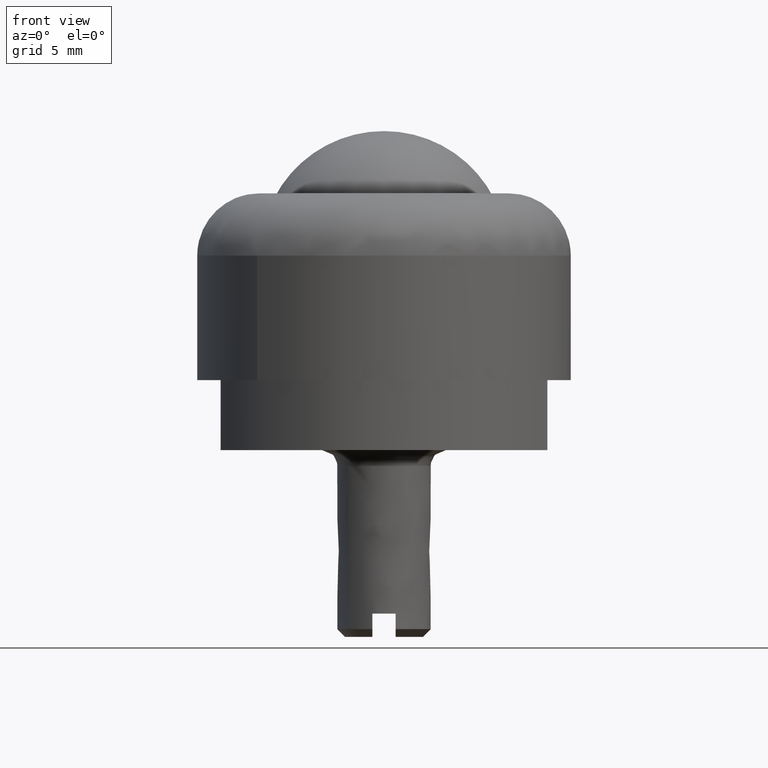
[diagram: clean part render]
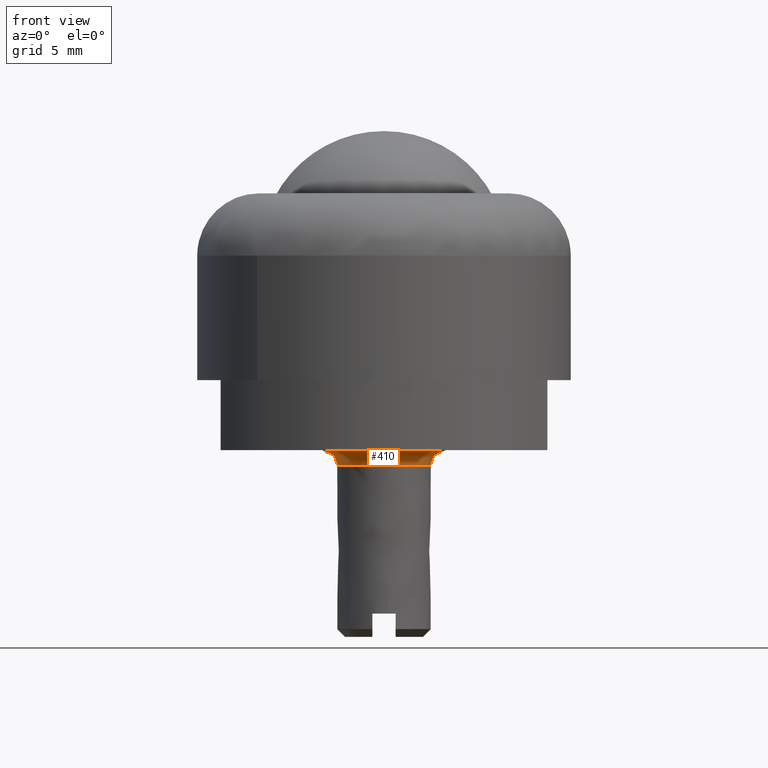
[diagram: same view with one face highlighted and labeled with its STEP entity id]
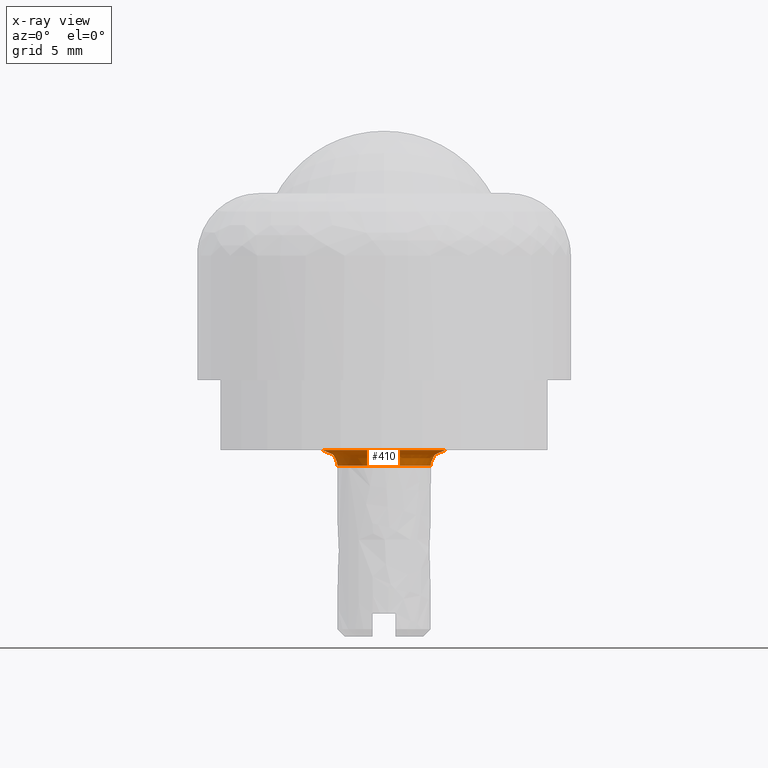
[diagram: x-ray of the same camera — body ghosted, the highlighted face saturated]
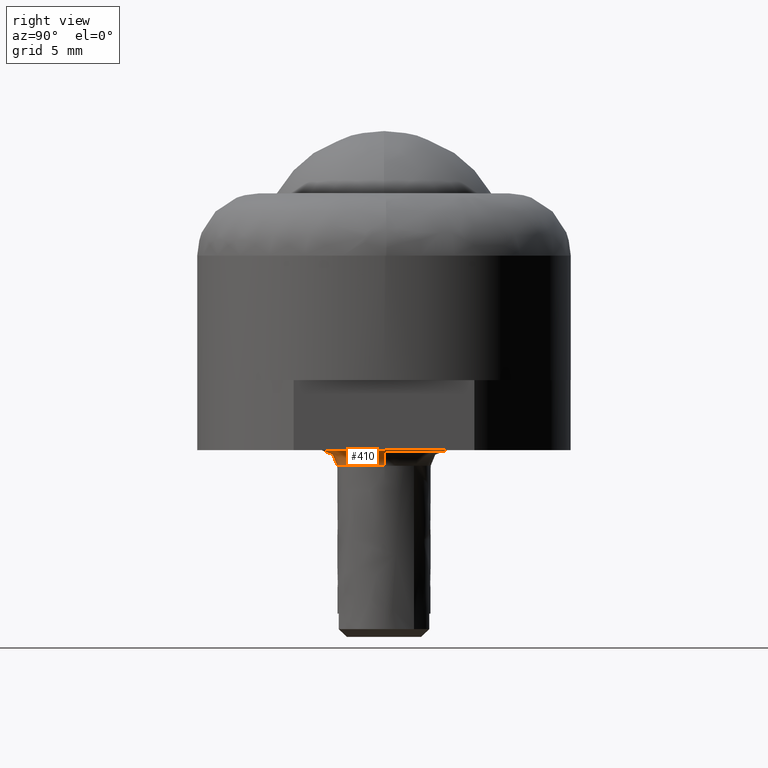
[diagram: same view with one face highlighted and labeled with its STEP entity id]
A machine part, front view. The second image highlights one B-rep face of the part: STEP entity #410.
The next image is the same camera in x-ray: the body ghosted, the highlighted face saturated — about 0% of this face is hidden behind the body in this view.
A second angle (right view) of the same face is appended — the face is thin or edge-on in the first view.
In plain terms, the highlighted face is a freeform B-spline surface patch.
Its self-contained STEP definition (entity closure, byte-faithful):
#225=CARTESIAN_POINT('',(-3.999684176578704,-0.050264159600141,-4.499999999999900));
#226=VERTEX_POINT('',#225);
#234=CARTESIAN_POINT('',(0.025111303395564,-3.999921177027848,-4.499999999999899));
#235=VERTEX_POINT('',#234);
#236=CARTESIAN_POINT('',(0.025111303395564,-3.999921177027848,-4.499999999999899));
#237=CARTESIAN_POINT('',(-0.317125567528658,-4.002170008766616,-4.499999999999891));
#238=CARTESIAN_POINT('',(-0.920541153919743,-3.927976344191393,-4.499999999999935));
#239=CARTESIAN_POINT('',(-1.751745237118776,-3.626288019553032,-4.499999999999866));
#240=CARTESIAN_POINT('',(-2.366398398245121,-3.249528601302264,-4.499999999999916));
#241=CARTESIAN_POINT('',(-2.930804822328052,-2.753552240857661,-4.499999999999912));
#242=CARTESIAN_POINT('',(-3.410933594520057,-2.150816930564041,-4.499999999999879));
#243=CARTESIAN_POINT('',(-3.755049696448426,-1.443019985042044,-4.499999999999898));
#244=CARTESIAN_POINT('',(-3.950617048764791,-0.734162109186115,-4.499999999999885));
#245=CARTESIAN_POINT('',(-3.996637067257391,-0.294697275434554,-4.499999999999881));
#246=CARTESIAN_POINT('',(-3.999684176578704,-0.050264159600141,-4.499999999999900));
#247=B_SPLINE_CURVE_WITH_KNOTS('',3,(#236,#237,#238,#239,#240,#241,#242,#243,#244,#245,#246),.UNSPECIFIED.,.F.,.U.,(4,1,1,1,1,1,1,1,4),(0.000000040040723,1.026713600767565,1.808974416914627,2.640135489933596,3.177914647720476,4.057958246989136,4.938008797570097,5.524712915542689,6.258070245550205),.UNSPECIFIED.);
#248=EDGE_CURVE('',#235,#226,#247,.T.);
#250=CARTESIAN_POINT('',(4.0,0.0,-4.499999999999900));
#251=VERTEX_POINT('',#250);
#252=CARTESIAN_POINT('',(4.0,0.0,-4.499999999999900));
#253=CARTESIAN_POINT('',(4.000099763452504,-0.342246650757845,-4.499999999999891));
#254=CARTESIAN_POINT('',(3.922122745795181,-0.945189930070948,-4.499999999999920));
#255=CARTESIAN_POINT('',(3.637925000411343,-1.713041520237169,-4.499999999999884));
#256=CARTESIAN_POINT('',(3.240089816935575,-2.389466266849083,-4.499999999999911));
#257=CARTESIAN_POINT('',(2.738344906107398,-2.953238354777755,-4.499999999999903));
#258=CARTESIAN_POINT('',(2.070145126238207,-3.452660096657348,-4.499999999999871));
#259=CARTESIAN_POINT('',(1.419396145120009,-3.764055521959317,-4.499999999999932));
#260=CARTESIAN_POINT('',(0.709307441201092,-3.955153655652417,-4.499999999999864));
#261=CARTESIAN_POINT('',(0.269560471540207,-3.998411213281082,-4.499999999999911));
#262=CARTESIAN_POINT('',(0.025111303395564,-3.999921177027848,-4.499999999999899));
#263=B_SPLINE_CURVE_WITH_KNOTS('',3,(#252,#253,#254,#255,#256,#257,#258,#259,#260,#261,#262),.UNSPECIFIED.,.F.,.U.,(4,1,1,1,1,1,1,1,4),(0.000000040043162,1.026720581053635,1.808986715649765,2.444587874536462,3.373504915515499,4.057985835790400,4.938042369706338,5.524750476696165,6.258112792421015),.UNSPECIFIED.);
#264=EDGE_CURVE('',#251,#235,#263,.T.);
#266=CARTESIAN_POINT('',(3.999684176578705,0.050264159600142,-4.499999999999900));
#267=VERTEX_POINT('',#266);
#268=CARTESIAN_POINT('',(3.999684176578705,0.050264159600142,-4.499999999999900));
#269=CARTESIAN_POINT('',(4.0,0.0,-4.499999999999900));
#270=QUASI_UNIFORM_CURVE('',1,(#268,#269),.UNSPECIFIED.,.F.,.U.);
#271=EDGE_CURVE('',#267,#251,#270,.T.);
#306=CARTESIAN_POINT('',(3.001128809170595,0.121659796228339,-5.569537109113146));
#307=CARTESIAN_POINT('',(3.001653121234309,0.079938564153340,-5.569537109113147));
#308=CARTESIAN_POINT('',(3.039912113435770,-2.964455038556122,-5.569537109113147));
#309=CARTESIAN_POINT('',(0.037728537439824,-3.002183575995947,-5.569537109113147));
#310=CARTESIAN_POINT('',(-2.964455038556122,-3.039912113435770,-5.569537109113147));
#311=CARTESIAN_POINT('',(-3.002714030757240,0.004481489246375,-5.569537109113146));
#312=CARTESIAN_POINT('',(-3.003238342820619,0.046202721294689,-5.569537109113147));
#313=CARTESIAN_POINT('',(2.921205433762338,0.118419861462347,-4.422462825982146));
#314=CARTESIAN_POINT('',(2.921715782816608,0.077809711885186,-4.422462825982147));
#315=CARTESIAN_POINT('',(2.958955895792656,-2.885508326171291,-4.422462825982145));
#316=CARTESIAN_POINT('',(0.036723784810682,-2.922232110981972,-4.422462825982147));
#317=CARTESIAN_POINT('',(-2.885508326171289,-2.958955895792656,-4.422462825982145));
#318=CARTESIAN_POINT('',(-2.922748439147003,0.004362142237233,-4.422462825982147));
#319=CARTESIAN_POINT('',(-2.923258788200948,0.044972291788420,-4.422462825982147));
#320=CARTESIAN_POINT('',(4.067786172993728,0.164899965437884,-4.502420636468138));
#321=CARTESIAN_POINT('',(4.068496835380691,0.108350226407574,-4.502420636468138));
#322=CARTESIAN_POINT('',(4.120353789668765,-4.018077857722075,-4.502420636468137));
#323=CARTESIAN_POINT('',(0.051137965973346,-4.069215823695418,-4.502420636468138));
#324=CARTESIAN_POINT('',(-4.018077857722075,-4.120353789668765,-4.502420636468137));
#325=CARTESIAN_POINT('',(-4.069934812009683,0.006074294423858,-4.502420636468138));
#326=CARTESIAN_POINT('',(-4.070645474396189,0.062624033417999,-4.502420636468138));
#334=(BOUNDED_SURFACE()B_SPLINE_SURFACE(2,2,((#306,#313,#320),(#307,#314,#321),(#308,#315,#322),(#309,#316,#323),(#310,#317,#324),(#311,#318,#325),(#312,#319,#326)),.UNSPECIFIED.,.F.,.F.,.U.)B_SPLINE_SURFACE_WITH_KNOTS((3,1,2,1,3),(3,3),(0.0,0.134852598069932,6.877482497373396,13.620112396676859,13.754964994659010),(0.0,1.822729993278181),.UNSPECIFIED.)GEOMETRIC_REPRESENTATION_ITEM()RATIONAL_B_SPLINE_SURFACE(((0.921146729411583,0.604479481456788,0.921146741244216),(0.915813262251290,0.600979527149313,0.915813274015412),(0.643806437242182,0.422481857576905,0.643806445512228),(0.910479795090997,0.597479572841838,0.910479806786608),(0.643806437242182,0.422481857576905,0.643806445512228),(0.915813262247818,0.600979527147035,0.915813274011940),(0.921146729404639,0.604479481452232,0.921146741237273)))REPRESENTATION_ITEM('')SURFACE());
#335=CARTESIAN_POINT('',(2.999763132611411,0.037698119653016,-5.499999999958122));
#336=VERTEX_POINT('',#335);
#337=CARTESIAN_POINT('',(3.0,0.0,-5.499999999999900));
#338=VERTEX_POINT('',#337);
#339=CARTESIAN_POINT('',(2.999763132611411,0.037698119653016,-5.499999999958122));
#340=CARTESIAN_POINT('',(3.0,0.0,-5.499999999999900));
#341=QUASI_UNIFORM_CURVE('',1,(#339,#340),.UNSPECIFIED.,.F.,.U.);
#342=EDGE_CURVE('',#336,#338,#341,.T.);
#343=ORIENTED_EDGE('',*,*,#342,.F.);
#344=CARTESIAN_POINT('',(2.999763132611411,0.037698119653016,-5.499999999958122));
#345=CARTESIAN_POINT('',(2.999651067471479,0.037696711330895,-5.377263110224252));
#346=CARTESIAN_POINT('',(3.036385334355335,0.038158352050629,-5.180998333675531));
#347=CARTESIAN_POINT('',(3.161495582910901,0.039730616575413,-4.939899777247685));
#348=CARTESIAN_POINT('',(3.331030081689882,0.041861162079976,-4.738299432446276));
#349=CARTESIAN_POINT('',(3.607107225877989,0.045330632434891,-4.553777601119346));
#350=CARTESIAN_POINT('',(3.860597068550744,0.048516247440971,-4.499830352767810));
#351=CARTESIAN_POINT('',(3.999684176578705,0.050264159600142,-4.499999999999900));
#352=B_SPLINE_CURVE_WITH_KNOTS('',3,(#344,#345,#346,#347,#348,#349,#350,#351),.UNSPECIFIED.,.F.,.U.,(4,1,1,1,1,4),(0.000000086228514,0.368163986574393,0.589074801624046,0.809950585924334,1.153581815551645,1.570835744183209),.UNSPECIFIED.);
#353=EDGE_CURVE('',#336,#267,#352,.T.);
#354=ORIENTED_EDGE('',*,*,#353,.T.);
#355=ORIENTED_EDGE('',*,*,#271,.T.);
#356=ORIENTED_EDGE('',*,*,#264,.T.);
#357=ORIENTED_EDGE('',*,*,#248,.T.);
#358=CARTESIAN_POINT('',(-2.999763132611411,-0.037698119653016,-5.499999999958124));
#359=VERTEX_POINT('',#358);
#360=CARTESIAN_POINT('',(-2.999763132611411,-0.037698119653016,-5.499999999958124));
#361=CARTESIAN_POINT('',(-2.999735124370926,-0.037697767675561,-5.410004063860336));
#362=CARTESIAN_POINT('',(-3.024216454522372,-0.038005425344821,-5.230028094015151));
#363=CARTESIAN_POINT('',(-3.125035834297195,-0.039272425740325,-4.994786115538280));
#364=CARTESIAN_POINT('',(-3.269581157128171,-0.041088931466790,-4.804828122325603));
#365=CARTESIAN_POINT('',(-3.439622924091197,-0.043225851824981,-4.661741526469281));
#366=CARTESIAN_POINT('',(-3.680705120425666,-0.046255539542913,-4.536623407301839));
#367=CARTESIAN_POINT('',(-3.876957747834677,-0.048721852623635,-4.499888627535637));
#368=CARTESIAN_POINT('',(-3.999684176578704,-0.050264159600141,-4.499999999999900));
#369=B_SPLINE_CURVE_WITH_KNOTS('',3,(#360,#361,#362,#363,#364,#365,#366,#367,#368),.UNSPECIFIED.,.F.,.U.,(4,1,1,1,1,1,4),(0.000000086228904,0.269986894572906,0.539979768443401,0.760885244488108,0.981761028787847,1.202671843837409,1.570835744183204),.UNSPECIFIED.);
#370=EDGE_CURVE('',#359,#226,#369,.T.);
#371=ORIENTED_EDGE('',*,*,#370,.F.);
#372=CARTESIAN_POINT('',(-2.297376269999672,-1.929264697765029,-5.499999999962933));
#373=VERTEX_POINT('',#372);
#374=CARTESIAN_POINT('',(-2.297376269999672,-1.929264697765029,-5.499999999962933));
#375=CARTESIAN_POINT('',(-2.511240729766094,-1.674933963129021,-5.499999999961463));
#376=CARTESIAN_POINT('',(-2.770163041245359,-1.234751614638885,-5.499999999959661));
#377=CARTESIAN_POINT('',(-2.960700155925438,-0.573140865643041,-5.499999999958380));
#378=CARTESIAN_POINT('',(-2.997492432465585,-0.219893057993535,-5.499999999958130));
#379=CARTESIAN_POINT('',(-2.999763132611411,-0.037698119653016,-5.499999999958124));
#380=B_SPLINE_CURVE_WITH_KNOTS('',3,(#374,#375,#376,#377,#378,#379),.UNSPECIFIED.,.F.,.U.,(4,1,1,4),(0.000000010735499,0.996795563515408,1.511257594839444,2.057883340172767),.UNSPECIFIED.);
#381=EDGE_CURVE('',#373,#359,#380,.T.);
#382=ORIENTED_EDGE('',*,*,#381,.F.);
#383=CARTESIAN_POINT('',(0.018827169450559,-2.999940922366719,-5.499999999979012));
#384=VERTEX_POINT('',#383);
#385=CARTESIAN_POINT('',(0.018827169450559,-2.999940922366719,-5.499999999979012));
#386=CARTESIAN_POINT('',(-0.228266753327392,-3.001559552208222,-5.499999999977296));
#387=CARTESIAN_POINT('',(-0.626626874173155,-2.954507888595208,-5.499999999974519));
#388=CARTESIAN_POINT('',(-1.228488910779749,-2.757548938576115,-5.499999999970339));
#389=CARTESIAN_POINT('',(-1.783801570749062,-2.448007393985196,-5.499999999966487));
#390=CARTESIAN_POINT('',(-2.138519052270626,-2.118530360880990,-5.499999999964021));
#391=CARTESIAN_POINT('',(-2.297376269999672,-1.929264697765029,-5.499999999962933));
#392=B_SPLINE_CURVE_WITH_KNOTS('',3,(#385,#386,#387,#388,#389,#390,#391),.UNSPECIFIED.,.F.,.U.,(4,1,1,1,4),(0.000000018069755,0.741281028815449,1.194294799459290,1.894383352985547,2.635664363731283),.UNSPECIFIED.);
#393=EDGE_CURVE('',#384,#373,#392,.T.);
#394=ORIENTED_EDGE('',*,*,#393,.F.);
#395=CARTESIAN_POINT('',(3.0,0.0,-5.499999999999900));
#396=CARTESIAN_POINT('',(3.000148119294491,-0.305587816536538,-5.499999999999887));
#397=CARTESIAN_POINT('',(2.918963761141538,-0.831065790130705,-5.499999999999294));
#398=CARTESIAN_POINT('',(2.606217710809780,-1.539864623724503,-5.499999999997110));
#399=CARTESIAN_POINT('',(2.197490296494598,-2.079922199099364,-5.499999999994184));
#400=CARTESIAN_POINT('',(1.679174204749651,-2.513725287832533,-5.499999999990604));
#401=CARTESIAN_POINT('',(1.210879613123358,-2.759266503755506,-5.499999999987329));
#402=CARTESIAN_POINT('',(0.654047823133665,-2.946312181978256,-5.499999999983404));
#403=CARTESIAN_POINT('',(0.287735338206571,-2.998351802313286,-5.499999999980970));
#404=CARTESIAN_POINT('',(0.018827169450559,-2.999940922366719,-5.499999999979012));
#405=B_SPLINE_CURVE_WITH_KNOTS('',3,(#395,#396,#397,#398,#399,#400,#401,#402,#403,#404),.UNSPECIFIED.,.F.,.U.,(4,1,1,1,1,1,1,4),(0.000000055800261,0.916712139934553,1.576756389710105,2.310143469496619,2.933483988976316,3.593531029332420,3.886887106407463,4.693590902618728),.UNSPECIFIED.);
#406=EDGE_CURVE('',#338,#384,#405,.T.);
#407=ORIENTED_EDGE('',*,*,#406,.F.);
#408=EDGE_LOOP('',(#343,#354,#355,#356,#357,#371,#382,#394,#407));
#409=FACE_OUTER_BOUND('',#408,.T.);
#410=ADVANCED_FACE('',(#409),#334,.F.);